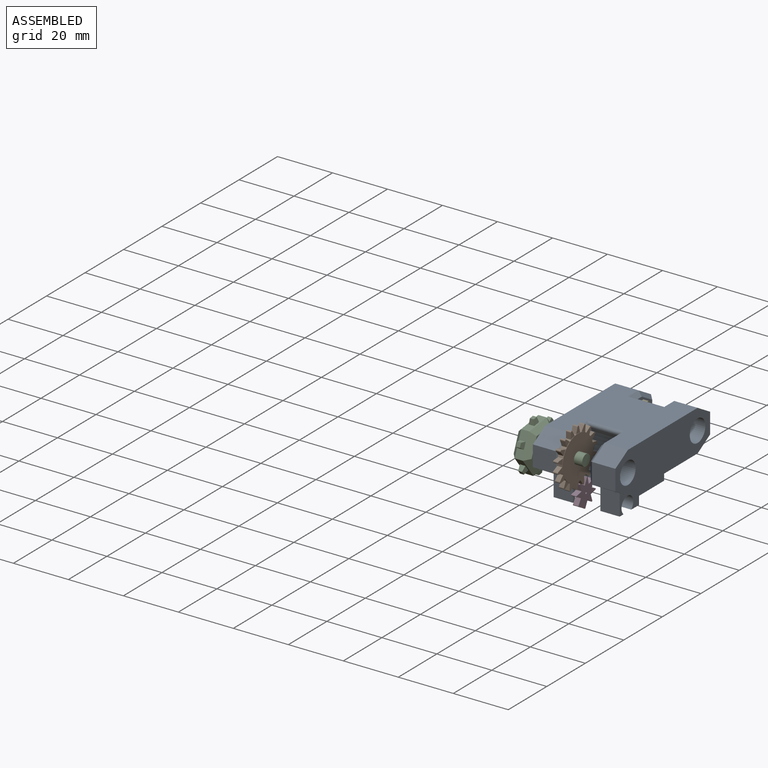
[diagram: assembled view]
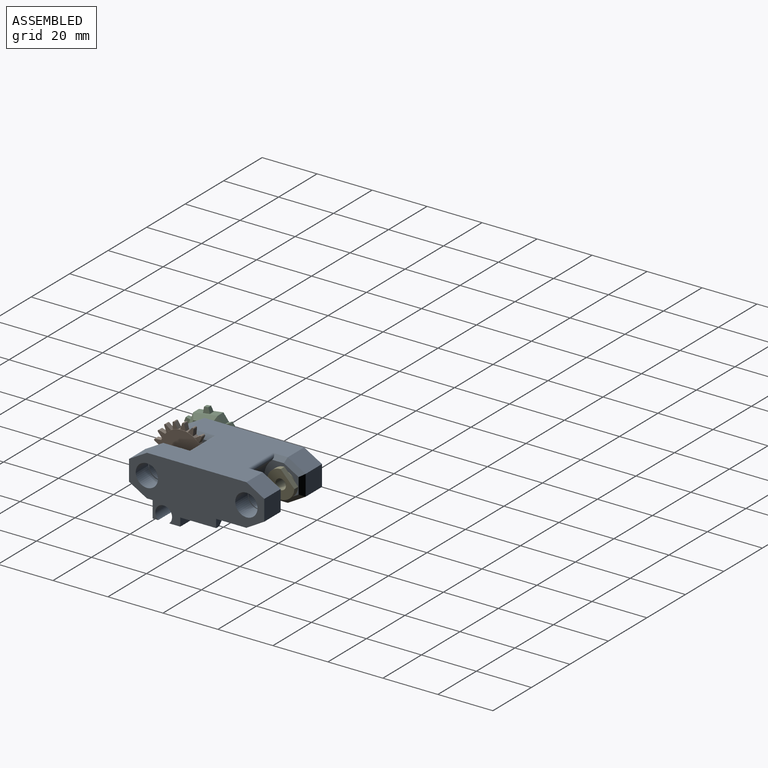
[diagram: assembled view, second angle]
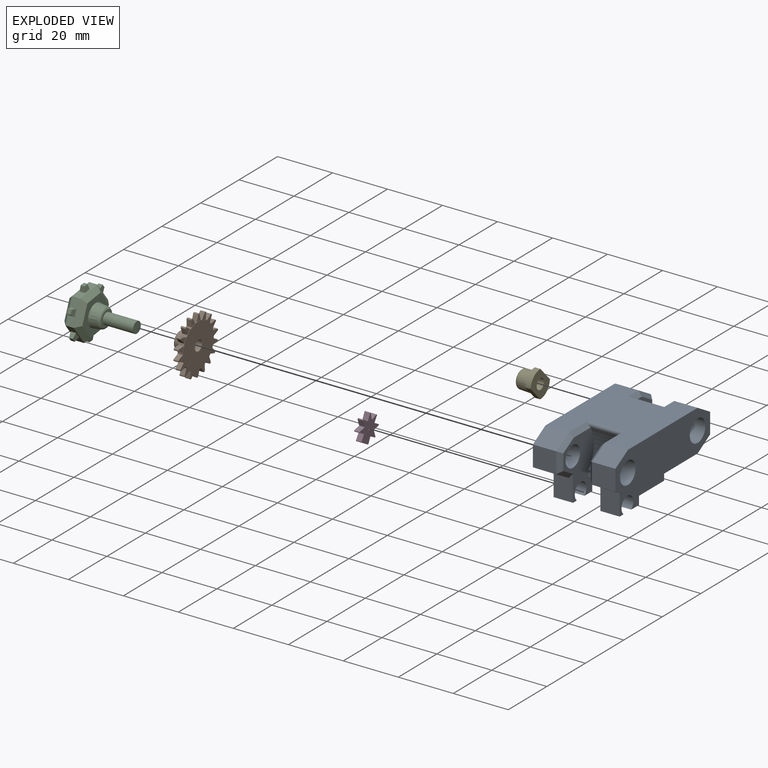
[diagram: exploded view]
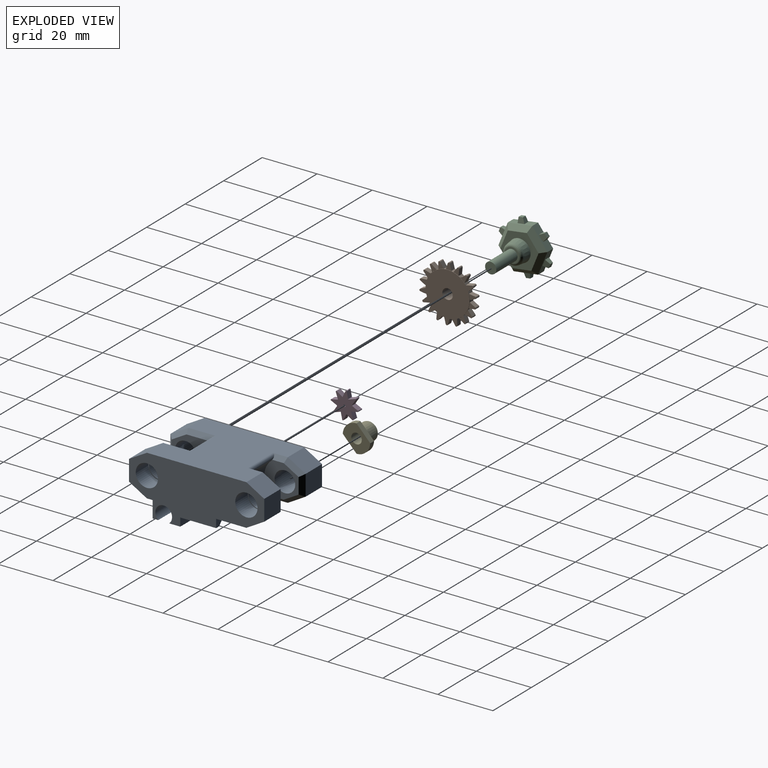
[diagram: exploded view, second angle]
ASSEMBLY  parts=5 mates=4
PART A: 89 faces, bbox 30x49.2x22.8 mm
  f0: plane 7.75x7mm, normal (0,1,0), area 43.2mm2, adj f8,f18,f32,f55,f56,f58,f61,f83
  f1: plane 4.75x3.5mm, normal (0,1,0), area 11mm2, adj f18,f55,f56,f58,f83,f87,f88
  f2: plane 13.05x1.5mm, normal (0,0,-1), area 19.6mm2, adj f51,f52,f54,f86
  f3: plane 10x1.81mm, normal (0,0,-1), area 18.1mm2, adj f8,f31,f32,f47,f59,f64
  f4: plane 10x2.48mm, normal (0,-1,0), area 24.8mm2, adj f30,f31,f32,f64
  f5: plane 7x2.02mm, normal (0,0,-1), area 14.2mm2, adj f31,f50,f51,f63
  f6: plane 7x2.02mm, normal (0,0,-1), area 14.2mm2, adj f32,f56,f57,f62
  f7: plane 36.2x10mm, normal (0,0,-1), area 257.4mm2, adj f17,f19,f29,f45,f47,f51,f52,f53
  f8: plane 20.68x2.75mm, normal (1,0,0), area 21.6mm2, adj f0,f3,f9,f18,f48,f49,f59
  f9: plane 10x1mm, normal (0,1,0), area 10mm2, adj f8,f45,f47,f49
  f10: cylinder r=4.05mm len=8.1mm, axis (-1,0,0), area 165.4mm2, adj f28,f43
  f11: cylinder r=4.05mm len=8.1mm, axis (-1,0,0), area 165.4mm2, adj f29,f41
  f12: cylinder r=4.05mm len=8.1mm, axis (-1,0,0), area 165.4mm2, adj f28,f39
  f13: cylinder r=4.05mm len=8.1mm, axis (-1,0,0), area 165.4mm2, adj f29,f37
  f14: plane 36.2x30mm, normal (0,0,1), area 883.7mm2, adj f15,f21,f22,f27,f28,f29,f44,f46
  f15: plane 8.5x6.5mm, normal (0,-0.5,0.87), area 63.8mm2, adj f14,f16,f29,f71
  f16: plane 8.5x7.5mm, normal (0,-1,0), area 63.7mm2, adj f15,f17,f29,f70
  f17: plane 8.5x6.5mm, normal (0,-0.5,-0.87), area 63.8mm2, adj f7,f16,f29,f50,f69
  f18: plane 36.2x10mm, normal (0,0,-1), area 257.4mm2, adj f0,f1,f8,f24,f25,f28,f45,f55
  f19: plane 8.5x6.5mm, normal (0,0.5,-0.87), area 63.8mm2, adj f7,f20,f29,f79
  f20: plane 8.5x7.5mm, normal (0,1,0), area 63.7mm2, adj f19,f21,f29,f80
  f21: plane 8.5x6.5mm, normal (0,0.5,0.87), area 63.8mm2, adj f14,f20,f29,f81
  f22: plane 8.5x6.5mm, normal (0,-0.5,0.87), area 63.8mm2, adj f14,f23,f28,f66
  f23: plane 8.5x7.5mm, normal (0,-1,0), area 63.7mm2, adj f22,f24,f28,f67
  f24: plane 8.5x6.5mm, normal (0,-0.5,-0.87), area 63.8mm2, adj f18,f23,f28,f57,f68
  f25: plane 8.5x6.5mm, normal (0,0.5,-0.87), area 63.8mm2, adj f18,f26,f28,f74
  f26: plane 8.5x7.5mm, normal (0,1,0), area 63.7mm2, adj f25,f27,f28,f75
  f27: plane 8.5x6.5mm, normal (0,0.5,0.87), area 63.8mm2, adj f14,f26,f28,f76
  f28: plane 49.19x15mm, normal (1,0,0), area 586.1mm2, adj f10,f12,f14,f18,f22,f23,f24,f25
  f29: plane 49.19x15mm, normal (-1,0,0), area 586.1mm2, adj f7,f11,f13,f14,f15,f16,f17,f19
  f30: cylinder r=11mm len=13.46mm, axis (1,0,0), area 145.5mm2, adj f4,f31,f32,f44
  f31: plane 21.25x16mm, normal (1,0,0), area 182.3mm2, adj f3,f4,f5,f30,f36,f44,f50,f54
  f32: plane 21.25x16mm, normal (-1,0,0), area 182.3mm2, adj f0,f3,f4,f6,f30,f38,f44,f57
  f33: cylinder r=7.5mm len=11.47mm, axis (1,0,0), area 130.6mm2, adj f34,f35,f45,f46
  f34: plane 12.5x12mm, normal (1,0,0), area 78.1mm2, adj f33,f40,f45,f46,f78,f79,f80,f81
  f35: plane 12.5x12mm, normal (-1,0,0), area 78.1mm2, adj f33,f42,f45,f46,f73,f74,f75,f76
  f36: cylinder r=3.75mm len=7.5mm, axis (1,0,0), area 82.5mm2, adj f31,f37
  f37: plane 8.1x8.1mm, normal (-1,0,0), area 7.4mm2, adj f13,f36
  f38: cylinder r=3.75mm len=7.5mm, axis (-1,0,0), area 82.5mm2, adj f32,f39
  f39: plane 8.1x8.1mm, normal (1,0,0), area 7.4mm2, adj f12,f38
  f40: cylinder r=3.75mm len=7.5mm, axis (1,0,0), area 82.5mm2, adj f34,f41
  f41: plane 8.1x8.1mm, normal (-1,0,0), area 7.4mm2, adj f11,f40
  f42: cylinder r=3.75mm len=7.5mm, axis (-1,0,0), area 82.5mm2, adj f35,f43
  f43: plane 8.1x8.1mm, normal (1,0,0), area 7.4mm2, adj f10,f42
  f44: cylinder r=1mm len=13mm, axis (1,0,0), area 25.3mm2, adj f14,f30,f31,f32,f65,f72
  f45: cylinder r=1mm len=13mm, axis (1,0,0), area 28.2mm2, adj f7,f9,f18,f33,f34,f35,f73,f78
  f46: cylinder r=1mm len=13mm, axis (1,0,0), area 28.2mm2, adj f14,f33,f34,f35,f77,f82
  f47: plane 20.68x2.75mm, normal (-1,0,0), area 21.6mm2, adj f3,f7,f9,f48,f49,f54,f59
  f48: plane 10x1.08mm, normal (0,1,0), area 10.7mm2, adj f8,f47,f49,f59
  f49: plane 20x10mm, normal (0,0,-1), area 200mm2, adj f8,f9,f47,f48
  f50: plane 9.48x7mm, normal (0,-1,0), area 55.5mm2, adj f5,f17,f31,f51,f69
  f51: plane 23.1x7.75mm, normal (-1,0,0), area 112.7mm2, adj f2,f5,f7,f50,f52,f54,f60,f63
  f52: plane 4.75x3.5mm, normal (0,1,0), area 11mm2, adj f2,f7,f51,f53,f84,f85,f86
  f53: plane 13.05x1.75mm, normal (1,0,0), area 22.8mm2, adj f7,f52,f54,f84
  f54: plane 7.75x7mm, normal (0,1,0), area 43.3mm2, adj f2,f7,f31,f47,f51,f53,f60,f84
  f55: plane 13.05x1.75mm, normal (-1,0,0), area 22.8mm2, adj f0,f1,f18,f83
  f56: plane 23.1x7.75mm, normal (1,0,0), area 112.7mm2, adj f0,f1,f6,f18,f57,f58,f61,f62
  f57: plane 9.48x7mm, normal (0,-1,0), area 55.5mm2, adj f6,f24,f32,f56,f68
  f58: plane 13.05x1.5mm, normal (0,0,-1), area 19.6mm2, adj f0,f1,f56,f88
  f59: plane 10x0.68mm, normal (0,0.71,-0.71), area 9.5mm2, adj f3,f8,f47,f48
  f60: plane 7x4.02mm, normal (0,0,-1), area 28.2mm2, adj f31,f51,f54,f63
  f61: plane 7x4.02mm, normal (0,0,-1), area 28.2mm2, adj f0,f32,f56,f62
  f62: cylinder r=3.05mm len=7mm, axis (1,0,0), area 103.6mm2, adj f6,f32,f56,f61
  f63: cylinder r=3.05mm len=7mm, axis (1,0,0), area 103.6mm2, adj f5,f31,f51,f60
  f64: cylinder r=5mm len=10mm, axis (-1,0,0), area 3.3mm2, adj f3,f4,f31,f32
  f65: plane 10.09x1.5mm, normal (-0.71,0,0.71), area 19.2mm2, adj f14,f32,f44,f66
  f66: plane 6.9x4.62mm, normal (-0.71,-0.35,0.61), area 14.6mm2, adj f22,f32,f65,f67
  f67: plane 7.5x1.5mm, normal (-0.71,-0.71,0), area 14.1mm2, adj f23,f32,f66,f68
  f68: plane 6.5x4.62mm, normal (-0.71,-0.35,-0.61), area 14.1mm2, adj f24,f32,f57,f67
  f69: plane 6.5x4.62mm, normal (0.71,-0.35,-0.61), area 14.1mm2, adj f17,f31,f50,f70
  f70: plane 7.5x1.5mm, normal (0.71,-0.71,0), area 14.1mm2, adj f16,f31,f69,f71
  f71: plane 6.9x4.62mm, normal (0.71,-0.35,0.61), area 14.6mm2, adj f15,f31,f70,f72
  f72: plane 10.09x1.5mm, normal (0.71,0,0.71), area 19.2mm2, adj f14,f31,f44,f71
  f73: plane 5.48x1.5mm, normal (-0.71,0,-0.71), area 9.4mm2, adj f18,f35,f45,f74
  f74: plane 6.9x4.62mm, normal (-0.71,0.35,-0.61), area 14.6mm2, adj f25,f35,f73,f75
  f75: plane 7.5x1.5mm, normal (-0.71,0.71,0), area 14.1mm2, adj f26,f35,f74,f76
  f76: plane 6.9x4.62mm, normal (-0.71,0.35,0.61), area 14.6mm2, adj f27,f35,f75,f77
  f77: plane 5.48x1.5mm, normal (-0.71,0,0.71), area 9.4mm2, adj f14,f35,f46,f76
  f78: plane 5.48x1.5mm, normal (0.71,0,-0.71), area 9.4mm2, adj f7,f34,f45,f79
  f79: plane 6.9x4.62mm, normal (0.71,0.35,-0.61), area 14.6mm2, adj f19,f34,f78,f80
  f80: plane 7.5x1.5mm, normal (0.71,0.71,0), area 14.1mm2, adj f20,f34,f79,f81
  f81: plane 6.9x4.62mm, normal (0.71,0.35,0.61), area 14.6mm2, adj f21,f34,f80,f82
  f82: plane 5.48x1.5mm, normal (0.71,0,0.71), area 9.4mm2, adj f14,f34,f46,f81
  f83: plane 13.05x1mm, normal (-0.71,0,0.71), area 18.5mm2, adj f0,f1,f55,f87
  f84: plane 13.05x1mm, normal (0.71,0,0.71), area 18.5mm2, adj f52,f53,f54,f85
  f85: plane 13.05x0.5mm, normal (0,0,1), area 6.5mm2, adj f52,f54,f84,f86
  f86: plane 13.05x2mm, normal (0.71,0,-0.71), area 36.9mm2, adj f2,f52,f54,f85
  f87: plane 13.05x0.5mm, normal (0,0,1), area 6.5mm2, adj f0,f1,f83,f88
  f88: plane 13.05x2mm, normal (-0.71,0,-0.71), area 36.9mm2, adj f0,f1,f58,f87
PART B: 98 faces, bbox 20.5x7x20.8 mm
  f0: cylinder r=8mm len=16mm, axis (0,1,0), area 34.3mm2, adj f1,f2,f3,f5,f6,f7,f8,f10
  f1: plane 16x16mm, normal (0,-1,0), area 163.7mm2, adj f0,f96
  f2: plane 16x16mm, normal (0,1,0), area 189.7mm2, adj f0,f93
  f3: plane 2.18x1.8mm, normal (0.96,0,0.28), area 4.1mm2, adj f0,f4,f6,f7
  f4: cylinder r=0.4mm len=1.8mm, axis (0,1,0), area 1.9mm2, adj f3,f5,f6,f7
  f5: plane 2.18x1.8mm, normal (-0.96,0,0.28), area 4.1mm2, adj f0,f4,f6,f7
  f6: plane 2.47x2.04mm, normal (0,-1,0), area 3.1mm2, adj f0,f3,f4,f5
  f7: plane 2.47x2.04mm, normal (0,1,0), area 3.1mm2, adj f0,f3,f4,f5
  f8: plane 1.83x1.8mm, normal (0.81,0,0.59), area 4.1mm2, adj f0,f9,f11,f12
  f9: cylinder r=0.4mm len=1.8mm, axis (0,1,0), area 1.9mm2, adj f8,f10,f11,f12
  f10: plane 2.26x1.8mm, normal (-1,0,-0.07), area 4.1mm2, adj f0,f9,f11,f12
  f11: plane 2.69x2.06mm, normal (0,-1,0), area 3.1mm2, adj f0,f8,f9,f10
  f12: plane 2.69x2.06mm, normal (0,1,0), area 3.1mm2, adj f0,f8,f9,f10
  f13: plane 1.89x1.8mm, normal (0.56,0,0.83), area 4.1mm2, adj f0,f14,f16,f17
  f14: cylinder r=0.4mm len=1.8mm, axis (0,1,0), area 1.9mm2, adj f13,f15,f16,f17
  f15: plane 2.08x1.8mm, normal (-0.92,0,-0.4), area 4.1mm2, adj f0,f14,f16,f17
  f16: plane 2.64x2.51mm, normal (0,-1,0), area 3.1mm2, adj f0,f13,f14,f15
  f17: plane 2.64x2.51mm, normal (0,1,0), area 3.1mm2, adj f0,f13,f14,f15
  f18: plane 2.2x1.8mm, normal (0.24,0,0.97), area 4.1mm2, adj f0,f19,f21,f22
  f19: cylinder r=0.4mm len=1.8mm, axis (0,1,0), area 1.9mm2, adj f18,f20,f21,f22
  f20: plane 1.8x1.64mm, normal (-0.72,0,-0.69), area 4.1mm2, adj f0,f19,f21,f22
  f21: plane 2.7x2.32mm, normal (0,-1,0), area 3.1mm2, adj f0,f18,f19,f20
  f22: plane 2.7x2.32mm, normal (0,1,0), area 3.1mm2, adj f0,f18,f19,f20
  f23: plane 2.25x1.8mm, normal (-0.11,0,0.99), area 4.1mm2, adj f0,f24,f26,f27
  f24: cylinder r=0.4mm len=1.8mm, axis (0,1,0), area 1.9mm2, adj f23,f25,f26,f27
  f25: plane 2.03x1.8mm, normal (-0.44,0,-0.9), area 4.1mm2, adj f0,f24,f26,f27
  f26: plane 2.61x2.01mm, normal (0,-1,0), area 3.1mm2, adj f0,f23,f24,f25
  f27: plane 2.61x2.01mm, normal (0,1,0), area 3.1mm2, adj f0,f23,f24,f25
  f28: plane 2.03x1.8mm, normal (-0.44,0,0.9), area 4.1mm2, adj f0,f29,f31,f32
  f29: cylinder r=0.4mm len=1.8mm, axis (0,1,0), area 1.9mm2, adj f28,f30,f31,f32
  f30: plane 2.25x1.8mm, normal (-0.11,0,-0.99), area 4.1mm2, adj f0,f29,f31,f32
  f31: plane 2.61x2.01mm, normal (0,-1,0), area 3.1mm2, adj f0,f28,f29,f30
  f32: plane 2.61x2.01mm, normal (0,1,0), area 3.1mm2, adj f0,f28,f29,f30
  f33: plane 1.8x1.64mm, normal (-0.72,0,0.69), area 4.1mm2, adj f0,f34,f36,f37
  f34: cylinder r=0.4mm len=1.8mm, axis (0,1,0), area 1.9mm2, adj f33,f35,f36,f37
  f35: plane 2.2x1.8mm, normal (0.24,0,-0.97), area 4.1mm2, adj f0,f34,f36,f37
  f36: plane 2.7x2.32mm, normal (0,-1,0), area 3.1mm2, adj f0,f33,f34,f35
  f37: plane 2.7x2.32mm, normal (0,1,0), area 3.1mm2, adj f0,f33,f34,f35
  f38: plane 2.08x1.8mm, normal (-0.92,0,0.4), area 4.1mm2, adj f0,f39,f41,f42
  f39: cylinder r=0.4mm len=1.8mm, axis (0,1,0), area 1.9mm2, adj f38,f40,f41,f42
  f40: plane 1.89x1.8mm, normal (0.56,0,-0.83), area 4.1mm2, adj f0,f39,f41,f42
  f41: plane 2.64x2.51mm, normal (0,-1,0), area 3.1mm2, adj f0,f38,f39,f40
  f42: plane 2.64x2.51mm, normal (0,1,0), area 3.1mm2, adj f0,f38,f39,f40
  f43: plane 2.26x1.8mm, normal (-1,0,0.07), area 4.1mm2, adj f0,f44,f46,f47
  f44: cylinder r=0.4mm len=1.8mm, axis (0,1,0), area 1.9mm2, adj f43,f45,f46,f47
  f45: plane 1.83x1.8mm, normal (0.81,0,-0.59), area 4.1mm2, adj f0,f44,f46,f47
  f46: plane 2.69x2.06mm, normal (0,-1,0), area 3.1mm2, adj f0,f43,f44,f45
  f47: plane 2.69x2.06mm, normal (0,1,0), area 3.1mm2, adj f0,f43,f44,f45
  f48: plane 2.18x1.8mm, normal (-0.96,0,-0.28), area 4.1mm2, adj f0,f49,f51,f52
  f49: cylinder r=0.4mm len=1.8mm, axis (0,1,0), area 1.9mm2, adj f48,f50,f51,f52
  f50: plane 2.18x1.8mm, normal (0.96,0,-0.28), area 4.1mm2, adj f0,f49,f51,f52
  f51: plane 2.47x2.04mm, normal (0,-1,0), area 3.1mm2, adj f0,f48,f49,f50
  f52: plane 2.47x2.04mm, normal (0,1,0), area 3.1mm2, adj f0,f48,f49,f50
  f53: plane 1.83x1.8mm, normal (-0.81,0,-0.59), area 4.1mm2, adj f0,f54,f56,f57
  f54: cylinder r=0.4mm len=1.8mm, axis (0,1,0), area 1.9mm2, adj f53,f55,f56,f57
  f55: plane 2.26x1.8mm, normal (1,0,0.07), area 4.1mm2, adj f0,f54,f56,f57
  f56: plane 2.69x2.06mm, normal (0,-1,0), area 3.1mm2, adj f0,f53,f54,f55
  f57: plane 2.69x2.06mm, normal (0,1,0), area 3.1mm2, adj f0,f53,f54,f55
  f58: plane 1.89x1.8mm, normal (-0.56,0,-0.83), area 4.1mm2, adj f0,f59,f61,f62
  f59: cylinder r=0.4mm len=1.8mm, axis (0,1,0), area 1.9mm2, adj f58,f60,f61,f62
  f60: plane 2.08x1.8mm, normal (0.92,0,0.4), area 4.1mm2, adj f0,f59,f61,f62
  f61: plane 2.64x2.51mm, normal (0,-1,0), area 3.1mm2, adj f0,f58,f59,f60
  f62: plane 2.64x2.51mm, normal (0,1,0), area 3.1mm2, adj f0,f58,f59,f60
  f63: plane 2.2x1.8mm, normal (-0.24,0,-0.97), area 4.1mm2, adj f0,f64,f66,f67
  f64: cylinder r=0.4mm len=1.8mm, axis (0,1,0), area 1.9mm2, adj f63,f65,f66,f67
  f65: plane 1.8x1.64mm, normal (0.72,0,0.69), area 4.1mm2, adj f0,f64,f66,f67
  f66: plane 2.7x2.32mm, normal (0,-1,0), area 3.1mm2, adj f0,f63,f64,f65
  f67: plane 2.7x2.32mm, normal (0,1,0), area 3.1mm2, adj f0,f63,f64,f65
  f68: plane 2.25x1.8mm, normal (0.11,0,-0.99), area 4.1mm2, adj f0,f69,f71,f72
  f69: cylinder r=0.4mm len=1.8mm, axis (0,1,0), area 1.9mm2, adj f68,f70,f71,f72
  f70: plane 2.03x1.8mm, normal (0.44,0,0.9), area 4.1mm2, adj f0,f69,f71,f72
  f71: plane 2.61x2.01mm, normal (0,-1,0), area 3.1mm2, adj f0,f68,f69,f70
  f72: plane 2.61x2.01mm, normal (0,1,0), area 3.1mm2, adj f0,f68,f69,f70
  f73: plane 2.03x1.8mm, normal (0.44,0,-0.9), area 4.1mm2, adj f0,f74,f76,f77
  f74: cylinder r=0.4mm len=1.8mm, axis (0,1,0), area 1.9mm2, adj f73,f75,f76,f77
  f75: plane 2.25x1.8mm, normal (0.11,0,0.99), area 4.1mm2, adj f0,f74,f76,f77
  f76: plane 2.61x2.01mm, normal (0,-1,0), area 3.1mm2, adj f0,f73,f74,f75
  f77: plane 2.61x2.01mm, normal (0,1,0), area 3.1mm2, adj f0,f73,f74,f75
  f78: plane 1.8x1.64mm, normal (0.72,0,-0.69), area 4.1mm2, adj f0,f79,f81,f82
  f79: cylinder r=0.4mm len=1.8mm, axis (0,1,0), area 1.9mm2, adj f78,f80,f81,f82
  f80: plane 2.2x1.8mm, normal (-0.24,0,0.97), area 4.1mm2, adj f0,f79,f81,f82
  f81: plane 2.7x2.32mm, normal (0,-1,0), area 3.1mm2, adj f0,f78,f79,f80
  f82: plane 2.7x2.32mm, normal (0,1,0), area 3.1mm2, adj f0,f78,f79,f80
  f83: plane 2.08x1.8mm, normal (0.92,0,-0.4), area 4.1mm2, adj f0,f84,f86,f87
  f84: cylinder r=0.4mm len=1.8mm, axis (0,1,0), area 1.9mm2, adj f83,f85,f86,f87
  f85: plane 1.89x1.8mm, normal (-0.56,0,0.83), area 4.1mm2, adj f0,f84,f86,f87
  f86: plane 2.64x2.51mm, normal (0,-1,0), area 3.1mm2, adj f0,f83,f84,f85
  f87: plane 2.64x2.51mm, normal (0,1,0), area 3.1mm2, adj f0,f83,f84,f85
  f88: plane 2.26x1.8mm, normal (1,0,-0.07), area 4.1mm2, adj f0,f89,f91,f92
  f89: cylinder r=0.4mm len=1.8mm, axis (0,1,0), area 1.9mm2, adj f88,f90,f91,f92
  f90: plane 1.83x1.8mm, normal (-0.81,0,0.59), area 4.1mm2, adj f0,f89,f91,f92
  f91: plane 2.69x2.06mm, normal (0,-1,0), area 3.1mm2, adj f0,f88,f89,f90
  f92: plane 2.69x2.06mm, normal (0,1,0), area 3.1mm2, adj f0,f88,f89,f90
  f93: cylinder r=1.9mm len=7mm, axis (0,1,0), area 83.6mm2, adj f2,f95
  f94: cylinder r=3.25mm len=6.5mm, axis (0,1,0), area 2mm2, adj f96,f97
  f95: plane 4.9x4.9mm, normal (0,-1,0), area 7.5mm2, adj f93,f97
  f96: cone r=3.25mm half-angle=2.8deg, axis (0,1,0), area 86.4mm2, adj f1,f94
  f97: torus R=2.45mm, axis (0,-1,0), area 23.4mm2, adj f94,f95
PART C: 55 faces, bbox 18x21.5x19.6 mm
  f0: plane 7.79x4.5mm, normal (0.87,0,0.5), area 22mm2, adj f1,f4,f11,f17,f45,f47,f48,f49
  f1: plane 7.79x4.5mm, normal (0.87,0,-0.5), area 22mm2, adj f0,f5,f13,f19,f40,f42,f43,f44
  f2: plane 7.79x4.5mm, normal (-0.87,0,-0.5), area 22mm2, adj f3,f5,f10,f16,f30,f32,f33,f34
  f3: plane 7.79x4.5mm, normal (-0.87,0,0.5), area 22mm2, adj f2,f4,f8,f14,f25,f27,f28,f29
  f4: plane 9x3mm, normal (0,0,1), area 22mm2, adj f0,f3,f9,f15,f20,f22,f23,f24
  f5: plane 9x3mm, normal (0,0,-1), area 22mm2, adj f1,f2,f12,f18,f35,f37,f38,f39
  f6: plane 13.96x12.09mm, normal (0,-1,0), area 76.3mm2, adj f14,f15,f16,f17,f18,f19,f53
  f7: plane 13.96x12.09mm, normal (0,1,0), area 126.6mm2, adj f8,f9,f10,f11,f12,f13
  f8: plane 7.79x5.51mm, normal (-0.61,0.71,0.35), area 19.8mm2, adj f3,f7,f9,f10
  f9: plane 9x1.75mm, normal (0,0.71,0.71), area 19.8mm2, adj f4,f7,f8,f11
  f10: plane 7.79x5.51mm, normal (-0.61,0.71,-0.35), area 19.8mm2, adj f2,f7,f8,f12
  f11: plane 7.79x5.51mm, normal (0.61,0.71,0.35), area 19.8mm2, adj f0,f7,f9,f13
  f12: plane 9x1.75mm, normal (0,0.71,-0.71), area 19.8mm2, adj f5,f7,f10,f13
  f13: plane 7.79x5.51mm, normal (0.61,0.71,-0.35), area 19.8mm2, adj f1,f7,f11,f12
  f14: plane 7.79x5.51mm, normal (-0.61,-0.71,0.35), area 19.8mm2, adj f3,f6,f15,f16
  f15: plane 9x1.75mm, normal (0,-0.71,0.71), area 19.8mm2, adj f4,f6,f14,f17
  f16: plane 7.79x5.51mm, normal (-0.61,-0.71,-0.35), area 19.8mm2, adj f2,f6,f14,f18
  f17: plane 7.79x5.51mm, normal (0.61,-0.71,0.35), area 19.8mm2, adj f0,f6,f15,f19
  f18: plane 9x1.75mm, normal (0,-0.71,-0.71), area 19.8mm2, adj f5,f6,f16,f19
  f19: plane 7.79x5.51mm, normal (0.61,-0.71,-0.35), area 19.8mm2, adj f1,f6,f17,f18
  f20: plane 2x2mm, normal (0.98,0,0.22), area 3.5mm2, adj f4,f21,f23,f24
  f21: plane 1.6x1.4mm, normal (0,0,1), area 2.2mm2, adj f20,f22,f23,f24
  f22: plane 2x2mm, normal (-0.98,0,0.22), area 3.5mm2, adj f4,f21,f23,f24
  f23: plane 2.5x2mm, normal (0,0.99,0.15), area 4.1mm2, adj f4,f20,f21,f22
  f24: plane 2.5x2mm, normal (0,-0.99,0.15), area 4.1mm2, adj f4,f20,f21,f22
  f25: plane 2x1.96mm, normal (0.3,0,0.95), area 3.5mm2, adj f3,f26,f28,f29
  f26: plane 1.4x1.39mm, normal (-0.87,0,0.5), area 2.2mm2, adj f25,f27,f28,f29
  f27: plane 2x1.51mm, normal (-0.68,0,-0.74), area 3.5mm2, adj f3,f26,f28,f29
  f28: plane 2.78x2.76mm, normal (-0.13,0.99,0.07), area 4.1mm2, adj f3,f25,f26,f27
  f29: plane 2.78x2.76mm, normal (-0.13,-0.99,0.07), area 4.1mm2, adj f3,f25,f26,f27
  f30: plane 2x1.51mm, normal (-0.68,0,0.74), area 3.5mm2, adj f2,f31,f33,f34
  f31: plane 1.4x1.39mm, normal (-0.87,0,-0.5), area 2.2mm2, adj f30,f32,f33,f34
  f32: plane 2x1.96mm, normal (0.3,0,-0.95), area 3.5mm2, adj f2,f31,f33,f34
  f33: plane 2.78x2.76mm, normal (-0.13,0.99,-0.07), area 4.1mm2, adj f2,f30,f31,f32
  f34: plane 2.78x2.76mm, normal (-0.13,-0.99,-0.07), area 4.1mm2, adj f2,f30,f31,f32
  f35: plane 2x2mm, normal (-0.98,0,-0.22), area 3.5mm2, adj f5,f36,f38,f39
  f36: plane 1.6x1.4mm, normal (0,0,-1), area 2.2mm2, adj f35,f37,f38,f39
  f37: plane 2x2mm, normal (0.98,0,-0.22), area 3.5mm2, adj f5,f36,f38,f39
  f38: plane 2.5x2mm, normal (0,0.99,-0.15), area 4.1mm2, adj f5,f35,f36,f37
  f39: plane 2.5x2mm, normal (0,-0.99,-0.15), area 4.1mm2, adj f5,f35,f36,f37
  f40: plane 2x1.96mm, normal (-0.3,0,-0.95), area 3.5mm2, adj f1,f41,f43,f44
  f41: plane 1.4x1.39mm, normal (0.87,0,-0.5), area 2.2mm2, adj f40,f42,f43,f44
  f42: plane 2x1.51mm, normal (0.68,0,0.74), area 3.5mm2, adj f1,f41,f43,f44
  f43: plane 2.78x2.76mm, normal (0.13,0.99,-0.07), area 4.1mm2, adj f1,f40,f41,f42
  f44: plane 2.78x2.76mm, normal (0.13,-0.99,-0.07), area 4.1mm2, adj f1,f40,f41,f42
  f45: plane 2x1.51mm, normal (0.68,0,-0.74), area 3.5mm2, adj f0,f46,f48,f49
  f46: plane 1.4x1.39mm, normal (0.87,0,0.5), area 2.2mm2, adj f45,f47,f48,f49
  f47: plane 2x1.96mm, normal (-0.3,0,0.95), area 3.5mm2, adj f0,f46,f48,f49
  f48: plane 2.78x2.76mm, normal (0.13,0.99,0.07), area 4.1mm2, adj f0,f45,f46,f47
  f49: plane 2.78x2.76mm, normal (0.13,-0.99,0.07), area 4.1mm2, adj f0,f45,f46,f47
  f50: plane 5.23x5.23mm, normal (0,-1,0), area 8.3mm2, adj f52,f54
  f51: plane 4.1x4.1mm, normal (0,-1,0), area 13.2mm2, adj f52
  f52: cylinder r=2.05mm len=11mm, axis (0,1,0), area 141.7mm2, adj f50,f51
  f53: cone r=3.5mm half-angle=7.1deg, axis (0,1,0), area 75.3mm2, adj f6,f54
  f54: torus R=2.62mm, axis (0,-1,0), area 29.3mm2, adj f50,f53
PART D: 35 faces, bbox 10.1x2x10.1 mm
  f0: cylinder r=2.8mm len=2mm, axis (0,1,0), area 0.3mm2, adj f8,f9,f30,f31
  f1: cylinder r=2.8mm len=2mm, axis (0,1,0), area 0.3mm2, adj f8,f9,f27,f28
  f2: cylinder r=2.8mm len=2mm, axis (0,1,0), area 0.3mm2, adj f8,f9,f24,f25
  f3: cylinder r=2.8mm len=2mm, axis (0,1,0), area 0.3mm2, adj f8,f9,f21,f22
  f4: cylinder r=2.8mm len=2mm, axis (0,1,0), area 0.3mm2, adj f8,f9,f18,f19
  f5: cylinder r=2.8mm len=2mm, axis (0,1,0), area 0.3mm2, adj f8,f9,f15,f16
  f6: cylinder r=2.8mm len=2mm, axis (0,1,0), area 0.3mm2, adj f8,f9,f12,f13
  f7: cylinder r=2.8mm len=2mm, axis (0,1,0), area 0.3mm2, adj f8,f9,f10,f33
  f8: plane 10.1x10.1mm, normal (0,-1,0), area 44.8mm2, adj f0,f1,f2,f3,f4,f5,f6,f7
  f9: plane 10.1x10.1mm, normal (0,1,0), area 44.8mm2, adj f0,f1,f2,f3,f4,f5,f6,f7
  f10: plane 2.18x2mm, normal (0.95,0,0.32), area 4.6mm2, adj f7,f8,f9,f11
  f11: cylinder r=0.25mm len=2mm, axis (0,1,0), area 1.6mm2, adj f8,f9,f10,f12
  f12: plane 2.18x2mm, normal (-0.95,0,0.32), area 4.6mm2, adj f6,f8,f9,f11
  f13: plane 2.08x2mm, normal (0.44,0,0.9), area 4.6mm2, adj f6,f8,f9,f14
  f14: cylinder r=0.25mm len=2mm, axis (0,1,0), area 1.6mm2, adj f8,f9,f13,f15
  f15: plane 2.08x2mm, normal (-0.9,0,-0.44), area 4.6mm2, adj f5,f8,f9,f14
  f16: plane 2.18x2mm, normal (-0.32,0,0.95), area 4.6mm2, adj f5,f8,f9,f17
  f17: cylinder r=0.25mm len=2mm, axis (0,1,0), area 1.6mm2, adj f8,f9,f16,f18
  f18: plane 2.18x2mm, normal (-0.32,0,-0.95), area 4.6mm2, adj f4,f8,f9,f17
  f19: plane 2.08x2mm, normal (-0.9,0,0.44), area 4.6mm2, adj f4,f8,f9,f20
  f20: cylinder r=0.25mm len=2mm, axis (0,1,0), area 1.6mm2, adj f8,f9,f19,f21
  f21: plane 2.08x2mm, normal (0.44,0,-0.9), area 4.6mm2, adj f3,f8,f9,f20
  f22: plane 2.18x2mm, normal (-0.95,0,-0.32), area 4.6mm2, adj f3,f8,f9,f23
  f23: cylinder r=0.25mm len=2mm, axis (0,1,0), area 1.6mm2, adj f8,f9,f22,f24
  f24: plane 2.18x2mm, normal (0.95,0,-0.32), area 4.6mm2, adj f2,f8,f9,f23
  f25: plane 2.08x2mm, normal (-0.44,0,-0.9), area 4.6mm2, adj f2,f8,f9,f26
  f26: cylinder r=0.25mm len=2mm, axis (0,1,0), area 1.6mm2, adj f8,f9,f25,f27
  f27: plane 2.08x2mm, normal (0.9,0,0.44), area 4.6mm2, adj f1,f8,f9,f26
  f28: plane 2.18x2mm, normal (0.32,0,-0.95), area 4.6mm2, adj f1,f8,f9,f29
  f29: cylinder r=0.25mm len=2mm, axis (0,1,0), area 1.6mm2, adj f8,f9,f28,f30
  f30: plane 2.18x2mm, normal (0.32,0,0.95), area 4.6mm2, adj f0,f8,f9,f29
  f31: plane 2.08x2mm, normal (0.9,0,-0.44), area 4.6mm2, adj f0,f8,f9,f32
  f32: cylinder r=0.25mm len=2mm, axis (0,1,0), area 1.6mm2, adj f8,f9,f31,f33
  f33: plane 2.08x2mm, normal (-0.44,0,0.9), area 4.6mm2, adj f7,f8,f9,f32
  f34: cylinder r=0.38mm len=2mm, axis (0,-1,0), area 4.7mm2, adj f8,f9
PART E: 12 faces, bbox 10x7x10 mm
  f0: plane 7.49x7.38mm, normal (0,-1,0), area 12.8mm2, adj f6,f8,f10,f11
  f1: plane 7.49x7.38mm, normal (0,-1,0), area 12.8mm2, adj f6,f9,f10,f11
  f2: plane 10x9.99mm, normal (0,1,0), area 51.7mm2, adj f3,f8,f9,f10,f11
  f3: cylinder r=1.9mm len=7mm, axis (0,1,0), area 83.6mm2, adj f2,f5
  f4: cylinder r=3.25mm len=6.5mm, axis (0,1,0), area 2mm2, adj f6,f7
  f5: plane 4.9x4.9mm, normal (0,-1,0), area 7.5mm2, adj f3,f7
  f6: cone r=3.25mm half-angle=2.8deg, axis (0,1,0), area 86.4mm2, adj f0,f1,f4
  f7: torus R=2.45mm, axis (0,-1,0), area 23.4mm2, adj f4,f5
  f8: cylinder r=5mm len=4.99mm, axis (0,-1,0), area 15.2mm2, adj f0,f2,f10,f11
  f9: cylinder r=5mm len=4.99mm, axis (0,-1,0), area 15.2mm2, adj f1,f2,f10,f11
  f10: plane 5.24x4.99mm, normal (-0.69,0,-0.72), area 14.5mm2, adj f0,f1,f2,f8,f9
  f11: plane 5.24x4.99mm, normal (0.69,0,0.72), area 14.5mm2, adj f0,f1,f2,f8,f9
PLACE A t=(-13.24,1.98,7.43)mm fixed
PLACE B rot(axis=(0.31,0.31,-0.9),96deg) t=(-2.44,-16.12,7.43)mm
PLACE C rot(axis=(-0.4,0.4,0.82),101.1deg) t=(-16.69,-16.12,7.43)mm
PLACE D rot(axis=(0.71,0.71,-0.04),175deg) t=(-1.24,-12.09,-5.52)mm
PLACE E rot(axis=(0.58,0.58,-0.58),120deg) t=(-2.04,20.08,7.43)mm
MATE revolute D.f0 <-> A.f62  axis (-1,0,0) through (-3.24,-12.09,-5.52)mm
MATE slider B.f0 <-> C.f52  axis (-1,0,0) through (-8.44,-16.12,7.43)mm
MATE revolute E.f3 <-> A.f40  axis (-1,0,0) through (-3.04,20.08,7.43)mm
MATE revolute C.f52 <-> A.f12  axis (1,0,0) through (-13.44,-16.12,7.43)mm
